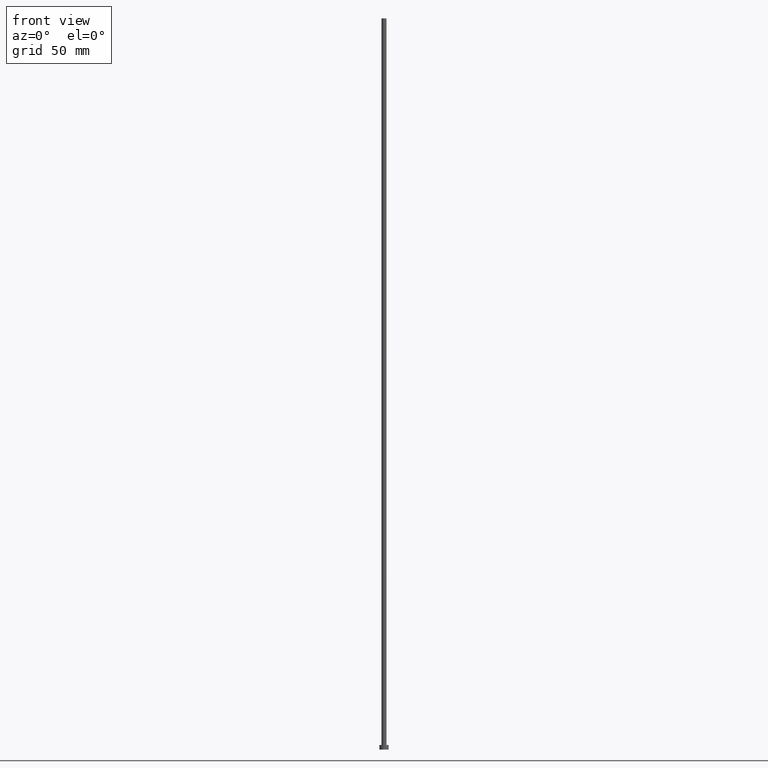
[diagram: clean part render]
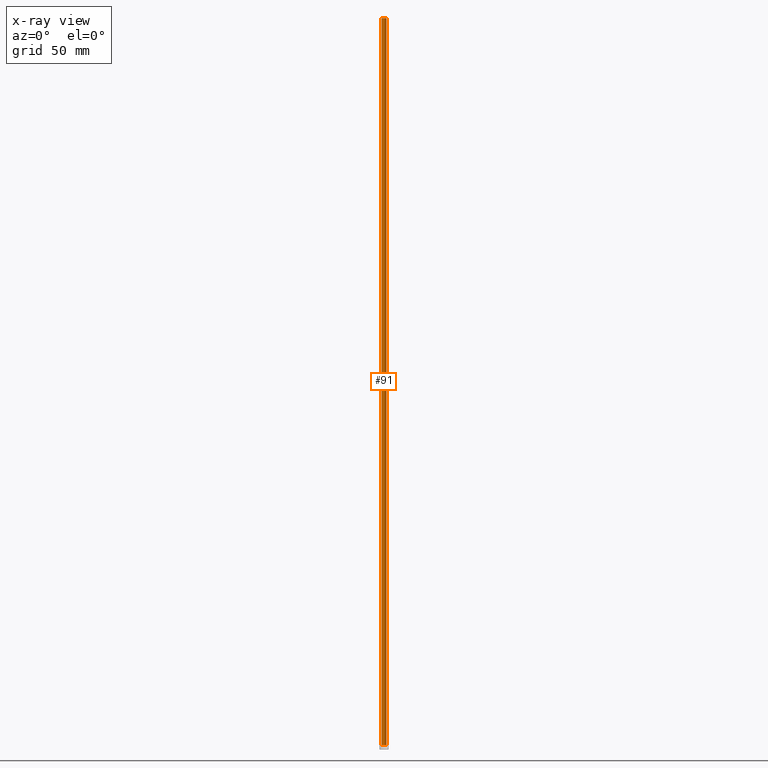
[diagram: x-ray — body ghosted, one internal face saturated and labeled with its STEP entity id]
A machine part, front view, then the same camera in x-ray: the body is ghosted and one INTERNAL B-rep face — a face not visible from any outside direction — is saturated and labeled: STEP entity #91.
In plain terms, the highlighted cylindrical surface (edge-blend (fillet) strip) has radius 1.1 mm, axis along (-0, -0, -1).
Its self-contained STEP definition (entity closure, byte-faithful):
#20 = VECTOR ( 'NONE', #182, 1000.000000000000000 ) ;
#26 = CARTESIAN_POINT ( 'NONE',  ( -1.100000000000000089, 0.000000000000000000, 315.0000000000000000 ) ) ;
#29 = DIRECTION ( 'NONE',  ( -0.000000000000000000, -0.000000000000000000, -1.000000000000000000 ) ) ;
#32 = CIRCLE ( 'NONE', #46, 1.100000000000000089 ) ;
#35 = CARTESIAN_POINT ( 'NONE',  ( 1.100000000000000089, 1.347111479062088503E-16, 2.000000000000000000 ) ) ;
#46 = AXIS2_PLACEMENT_3D ( 'NONE', #218, #175, #230 ) ;
#57 = VECTOR ( 'NONE', #206, 1000.000000000000000 ) ;
#59 = CYLINDRICAL_SURFACE ( 'NONE', #246, 1.100000000000000089 ) ;
#60 = CARTESIAN_POINT ( 'NONE',  ( -1.100000000000000089, 0.000000000000000000, 315.0000000000000000 ) ) ;
#65 = EDGE_CURVE ( 'NONE', #152, #74, #165, .T. ) ;
#74 = VERTEX_POINT ( 'NONE', #145 ) ;
#76 = ORIENTED_EDGE ( 'NONE', *, *, #120, .T. ) ;
#83 = DIRECTION ( 'NONE',  ( 0.000000000000000000, 0.000000000000000000, 1.000000000000000000 ) ) ;
#88 = ORIENTED_EDGE ( 'NONE', *, *, #65, .F. ) ;
#91 = ADVANCED_FACE ( 'NONE', ( #167 ), #59, .T. ) ;
#96 = ORIENTED_EDGE ( 'NONE', *, *, #198, .T. ) ;
#101 = DIRECTION ( 'NONE',  ( -1.000000000000000000, 0.000000000000000000, 0.000000000000000000 ) ) ;
#111 = EDGE_LOOP ( 'NONE', ( #232, #76, #96, #88 ) ) ;
#116 = CIRCLE ( 'NONE', #162, 1.100000000000000089 ) ;
#120 = EDGE_CURVE ( 'NONE', #241, #196, #181, .T. ) ;
#125 = DIRECTION ( 'NONE',  ( 1.000000000000000000, 0.000000000000000000, 0.000000000000000000 ) ) ;
#145 = CARTESIAN_POINT ( 'NONE',  ( -1.100000000000000089, 0.000000000000000000, 2.000000000000000000 ) ) ;
#152 = VERTEX_POINT ( 'NONE', #26 ) ;
#157 = CARTESIAN_POINT ( 'NONE',  ( 0.000000000000000000, 0.000000000000000000, 315.0000000000000000 ) ) ;
#162 = AXIS2_PLACEMENT_3D ( 'NONE', #157, #83, #125 ) ;
#163 = CARTESIAN_POINT ( 'NONE',  ( 1.100000000000000089, 1.347111479062088503E-16, 315.0000000000000000 ) ) ;
#165 = LINE ( 'NONE', #60, #57 ) ;
#167 = FACE_OUTER_BOUND ( 'NONE', #111, .T. ) ;
#175 = DIRECTION ( 'NONE',  ( 0.000000000000000000, 0.000000000000000000, 1.000000000000000000 ) ) ;
#181 = LINE ( 'NONE', #163, #20 ) ;
#182 = DIRECTION ( 'NONE',  ( -0.000000000000000000, -0.000000000000000000, -1.000000000000000000 ) ) ;
#196 = VERTEX_POINT ( 'NONE', #35 ) ;
#198 = EDGE_CURVE ( 'NONE', #196, #74, #32, .T. ) ;
#206 = DIRECTION ( 'NONE',  ( -0.000000000000000000, -0.000000000000000000, -1.000000000000000000 ) ) ;
#208 = CARTESIAN_POINT ( 'NONE',  ( 0.000000000000000000, 0.000000000000000000, 315.0000000000000000 ) ) ;
#218 = CARTESIAN_POINT ( 'NONE',  ( 0.000000000000000000, 0.000000000000000000, 2.000000000000000000 ) ) ;
#219 = EDGE_CURVE ( 'NONE', #241, #152, #116, .T. ) ;
#230 = DIRECTION ( 'NONE',  ( 1.000000000000000000, 0.000000000000000000, 0.000000000000000000 ) ) ;
#232 = ORIENTED_EDGE ( 'NONE', *, *, #219, .F. ) ;
#235 = CARTESIAN_POINT ( 'NONE',  ( 1.100000000000000089, 1.347111479062088503E-16, 315.0000000000000000 ) ) ;
#241 = VERTEX_POINT ( 'NONE', #235 ) ;
#246 = AXIS2_PLACEMENT_3D ( 'NONE', #208, #29, #101 ) ;